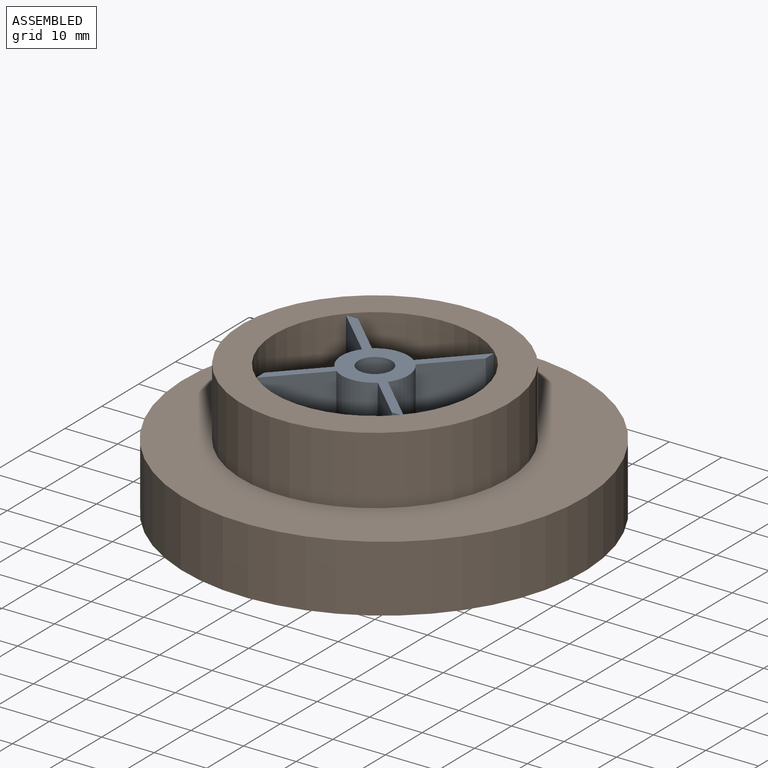
[diagram: assembled view]
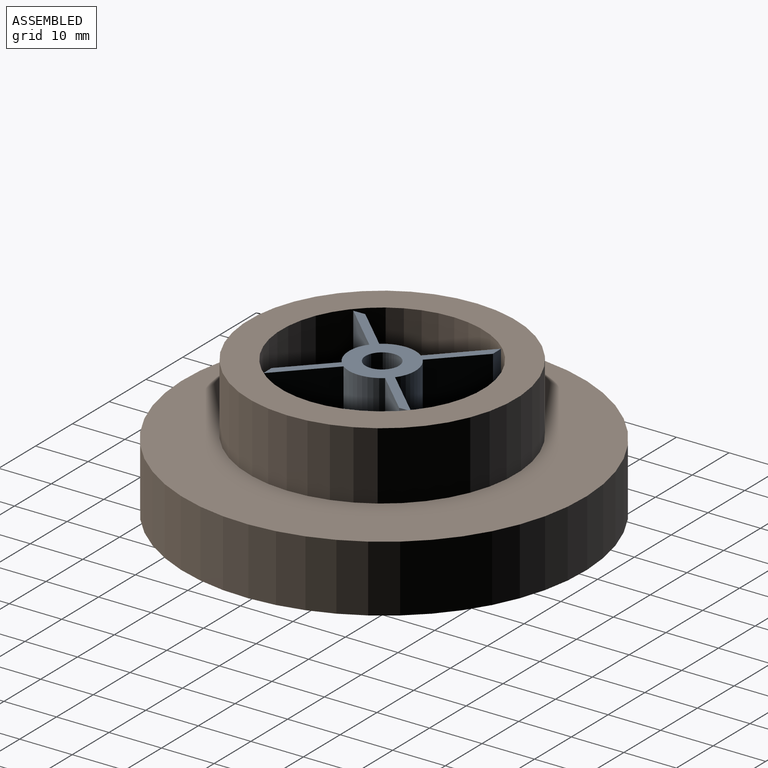
[diagram: assembled view, second angle]
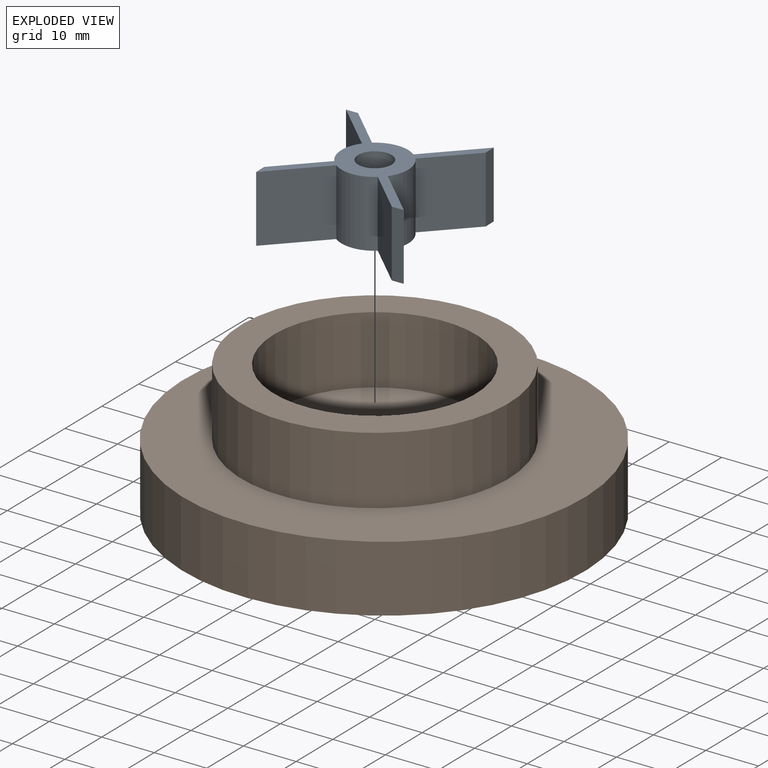
[diagram: exploded view]
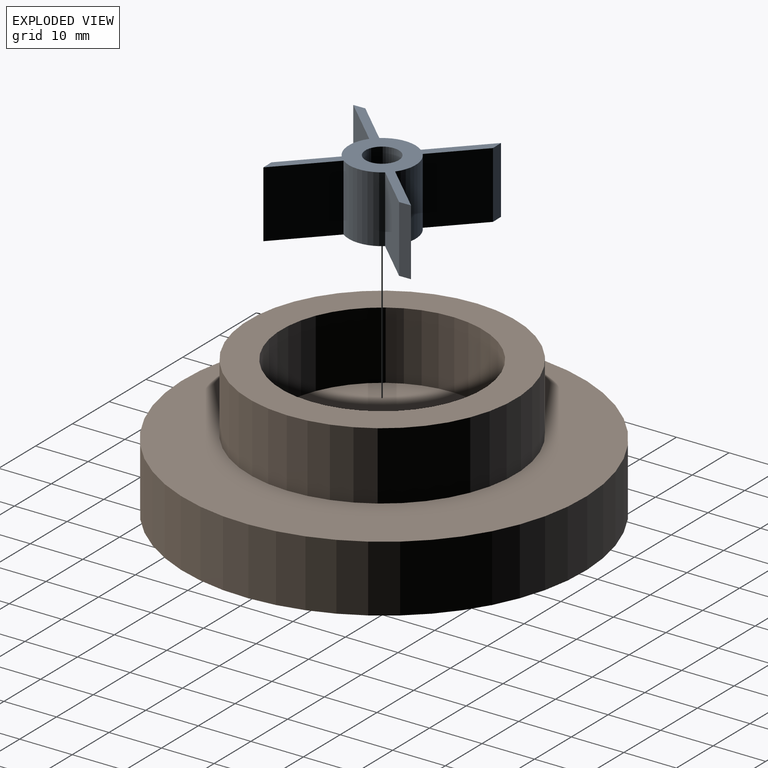
[diagram: exploded view, second angle]
ASSEMBLY  parts=2 mates=2
PART A: 19 faces, bbox 38.1x38.1x12.7 mm
  f0: plane 12.7x11.16mm, normal (1,0,0), area 141.8mm2, adj f5,f6,f7,f15
  f1: plane 12.7x11.16mm, normal (0,1,0), area 141.8mm2, adj f4,f6,f7,f16
  f2: cylinder r=6.35mm len=12.7mm, axis (0,0,-1), area 106.5mm2, adj f6,f7,f9,f13
  f3: cylinder r=6.35mm len=12.7mm, axis (0,0,-1), area 106.5mm2, adj f6,f7,f10,f12
  f4: cylinder r=6.35mm len=12.7mm, axis (0,0,-1), area 106.5mm2, adj f1,f6,f7,f8
  f5: cylinder r=6.35mm len=12.7mm, axis (0,0,-1), area 106.5mm2, adj f0,f6,f7,f11
  f6: plane 38.1x38.1mm, normal (0,0,1), area 170.7mm2, adj f0,f1,f2,f3,f4,f5,f8,f9
  f7: plane 38.1x38.1mm, normal (0,0,-1), area 170.7mm2, adj f0,f1,f2,f3,f4,f5,f8,f9
  f8: plane 12.75x12.7mm, normal (-1,0,0), area 161.9mm2, adj f4,f6,f7,f15
  f9: plane 12.7x11.16mm, normal (-1,0,0), area 141.8mm2, adj f2,f6,f7,f17
  f10: plane 12.75x12.7mm, normal (1,0,0), area 161.9mm2, adj f3,f6,f7,f17
  f11: plane 12.75x12.7mm, normal (0,1,0), area 161.9mm2, adj f5,f6,f7,f14
  f12: plane 12.7x11.16mm, normal (0,-1,0), area 141.8mm2, adj f3,f6,f7,f14
  f13: plane 12.75x12.7mm, normal (0,-1,0), area 161.9mm2, adj f2,f6,f7,f16
  f14: plane 12.7x1.59mm, normal (0.71,-0.71,0), area 28.5mm2, adj f6,f7,f11,f12
  f15: plane 12.7x1.59mm, normal (0.71,0.71,0), area 28.5mm2, adj f0,f6,f7,f8
  f16: plane 12.7x1.59mm, normal (-0.71,0.71,0), area 28.5mm2, adj f1,f6,f7,f13
  f17: plane 12.7x1.59mm, normal (-0.71,-0.71,0), area 28.5mm2, adj f6,f7,f9,f10
  f18: cylinder r=3.17mm len=12.7mm, axis (0,0,1), area 253.4mm2, adj f6,f7
PART B: 9 faces, bbox 76.2x76.2x25.7 mm
  f0: cylinder r=19.18mm len=38.35mm, axis (0,0,1), area 1560.9mm2, adj f2,f6
  f1: cylinder r=25.4mm len=50.8mm, axis (0,0,1), area 2067.4mm2, adj f2,f3
  f2: plane 50.8x50.8mm, normal (0,0,1), area 871.5mm2, adj f0,f1
  f3: plane 76.2x76.2mm, normal (0,0,1), area 2533.5mm2, adj f1,f5
  f4: plane 76.2x76.2mm, normal (0,0,-1), area 4560.4mm2, adj f5
  f5: cylinder r=38.1mm len=76.2mm, axis (0,0,1), area 3040.2mm2, adj f3,f4
  f6: plane 38.35x38.35mm, normal (0,0,1), area 1123.7mm2, adj f0,f7
  f7: cylinder r=3.17mm len=6.35mm, axis (0,0,1), area 126.7mm2, adj f6,f8
  f8: plane 6.35x6.35mm, normal (0,0,1), area 31.7mm2, adj f7
PLACE A rot(axis=(0,0,-1),43.7deg) t=(0,0,4.93)mm
PLACE B rot(axis=(0,0,-1),43.7deg) t=(0,0,5.06)mm
MATE slider A.f2 <-> B.f0  axis (0,0,1) through (0,0,11.28)mm
MATE planar A.f18 <-> B.f0  axis (0,0,-1) through (0,0,-1.42)mm
